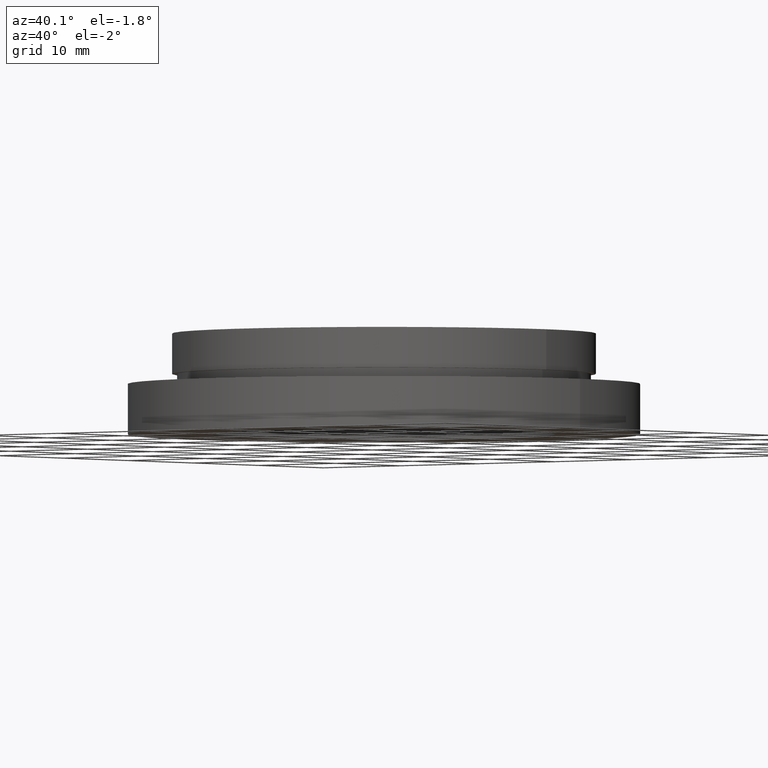
[diagram: clean part render]
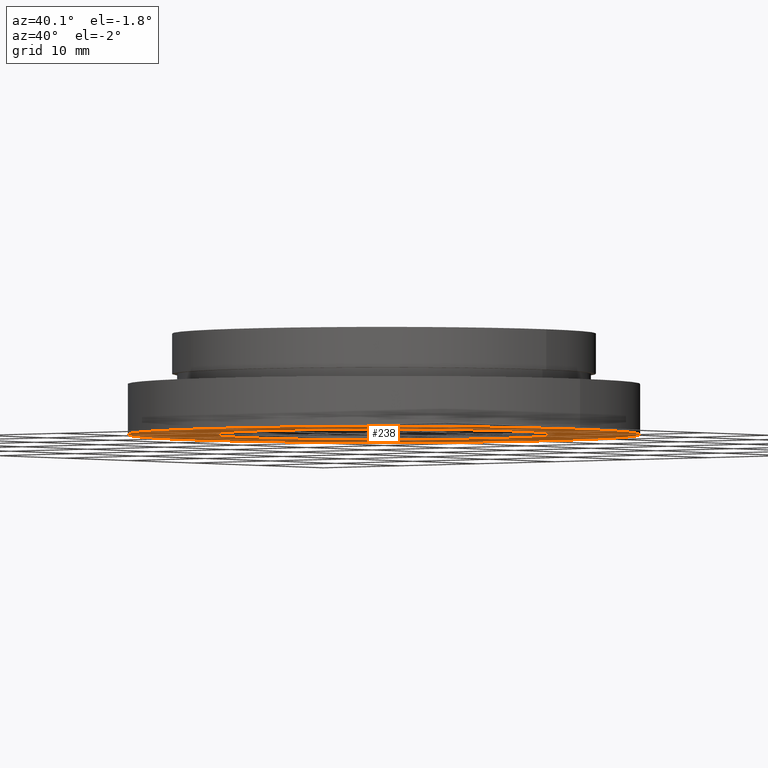
[diagram: same view with one face highlighted and labeled with its STEP entity id]
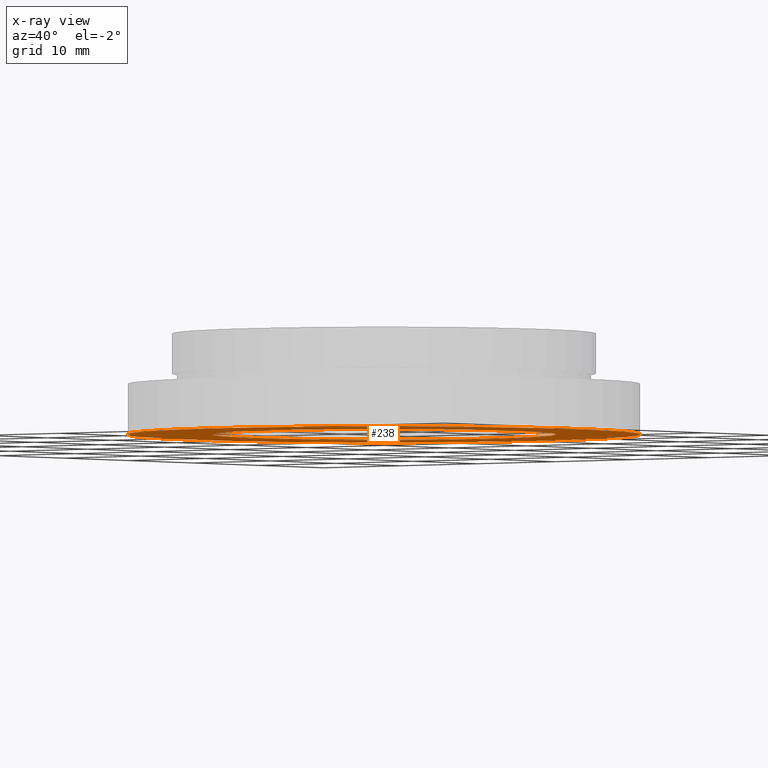
[diagram: x-ray of the same camera — body ghosted, the highlighted face saturated]
A machine part, auxiliary view. The second image highlights one B-rep face of the part: STEP entity #238.
The next image is the same camera in x-ray: the body ghosted, the highlighted face saturated — about 0% of this face is hidden behind the body in this view.
In plain terms, the highlighted planar face has unit normal (0, 0, 1).
Its self-contained STEP definition (entity closure, byte-faithful):
#5 = AXIS2_PLACEMENT_3D ( 'NONE', #32, #348, #191 ) ;
#6 = CARTESIAN_POINT ( 'NONE',  ( 0.0000000000000000000, 0.0000000000000000000, -10.00000000000000000 ) ) ;
#27 = ORIENTED_EDGE ( 'NONE', *, *, #360, .F. ) ;
#32 = CARTESIAN_POINT ( 'NONE',  ( 25.39999999999999900, 0.0000000000000000000, -9.999999999999998200 ) ) ;
#39 = FACE_BOUND ( 'NONE', #320, .T. ) ;
#50 = CARTESIAN_POINT ( 'NONE',  ( 17.00000000000000400, 2.081899558550500700E-015, -9.999999999999998200 ) ) ;
#51 = VERTEX_POINT ( 'NONE', #419 ) ;
#67 = EDGE_LOOP ( 'NONE', ( #422, #85 ) ) ;
#74 = DIRECTION ( 'NONE',  ( -1.000000000000000000, 0.0000000000000000000, 0.0000000000000000000 ) ) ;
#79 = AXIS2_PLACEMENT_3D ( 'NONE', #6, #211, #412 ) ;
#85 = ORIENTED_EDGE ( 'NONE', *, *, #257, .T. ) ;
#98 = EDGE_CURVE ( 'NONE', #304, #326, #258, .T. ) ;
#107 = CARTESIAN_POINT ( 'NONE',  ( 0.0000000000000000000, 0.0000000000000000000, -9.999999999999998200 ) ) ;
#121 = CARTESIAN_POINT ( 'NONE',  ( 0.0000000000000000000, 0.0000000000000000000, -10.00000000000000000 ) ) ;
#123 = VERTEX_POINT ( 'NONE', #136 ) ;
#136 = CARTESIAN_POINT ( 'NONE',  ( 25.39999999999999900, 3.110602869834276900E-015, -10.00000000000000000 ) ) ;
#138 = FACE_OUTER_BOUND ( 'NONE', #67, .T. ) ;
#144 = CIRCLE ( 'NONE', #283, 17.00000000000000400 ) ;
#145 = ORIENTED_EDGE ( 'NONE', *, *, #98, .F. ) ;
#159 = PLANE ( 'NONE',  #5 ) ;
#191 = DIRECTION ( 'NONE',  ( 1.000000000000000000, 0.0000000000000000000, -0.0000000000000000000 ) ) ;
#211 = DIRECTION ( 'NONE',  ( -0.0000000000000000000, -0.0000000000000000000, -1.000000000000000000 ) ) ;
#220 = DIRECTION ( 'NONE',  ( -0.0000000000000000000, -0.0000000000000000000, -1.000000000000000000 ) ) ;
#225 = CARTESIAN_POINT ( 'NONE',  ( -17.00000000000000400, 0.0000000000000000000, -9.999999999999998200 ) ) ;
#234 = CIRCLE ( 'NONE', #79, 25.39999999999999900 ) ;
#238 = ADVANCED_FACE ( 'NONE', ( #39, #138 ), #159, .F. ) ;
#251 = DIRECTION ( 'NONE',  ( -1.000000000000000000, 0.0000000000000000000, 0.0000000000000000000 ) ) ;
#257 = EDGE_CURVE ( 'NONE', #123, #51, #356, .T. ) ;
#258 = CIRCLE ( 'NONE', #351, 17.00000000000000400 ) ;
#283 = AXIS2_PLACEMENT_3D ( 'NONE', #107, #323, #74 ) ;
#289 = CARTESIAN_POINT ( 'NONE',  ( 0.0000000000000000000, 0.0000000000000000000, -9.999999999999998200 ) ) ;
#304 = VERTEX_POINT ( 'NONE', #50 ) ;
#306 = DIRECTION ( 'NONE',  ( -1.000000000000000000, 0.0000000000000000000, 0.0000000000000000000 ) ) ;
#320 = EDGE_LOOP ( 'NONE', ( #27, #145 ) ) ;
#323 = DIRECTION ( 'NONE',  ( -0.0000000000000000000, -0.0000000000000000000, -1.000000000000000000 ) ) ;
#326 = VERTEX_POINT ( 'NONE', #225 ) ;
#343 = DIRECTION ( 'NONE',  ( -0.0000000000000000000, -0.0000000000000000000, -1.000000000000000000 ) ) ;
#348 = DIRECTION ( 'NONE',  ( 0.0000000000000000000, 0.0000000000000000000, 1.000000000000000000 ) ) ;
#351 = AXIS2_PLACEMENT_3D ( 'NONE', #289, #220, #251 ) ;
#356 = CIRCLE ( 'NONE', #386, 25.39999999999999900 ) ;
#360 = EDGE_CURVE ( 'NONE', #326, #304, #144, .T. ) ;
#386 = AXIS2_PLACEMENT_3D ( 'NONE', #121, #343, #306 ) ;
#412 = DIRECTION ( 'NONE',  ( -1.000000000000000000, 0.0000000000000000000, 0.0000000000000000000 ) ) ;
#419 = CARTESIAN_POINT ( 'NONE',  ( -25.39999999999999900, 0.0000000000000000000, -10.00000000000000000 ) ) ;
#420 = EDGE_CURVE ( 'NONE', #51, #123, #234, .T. ) ;
#422 = ORIENTED_EDGE ( 'NONE', *, *, #420, .T. ) ;